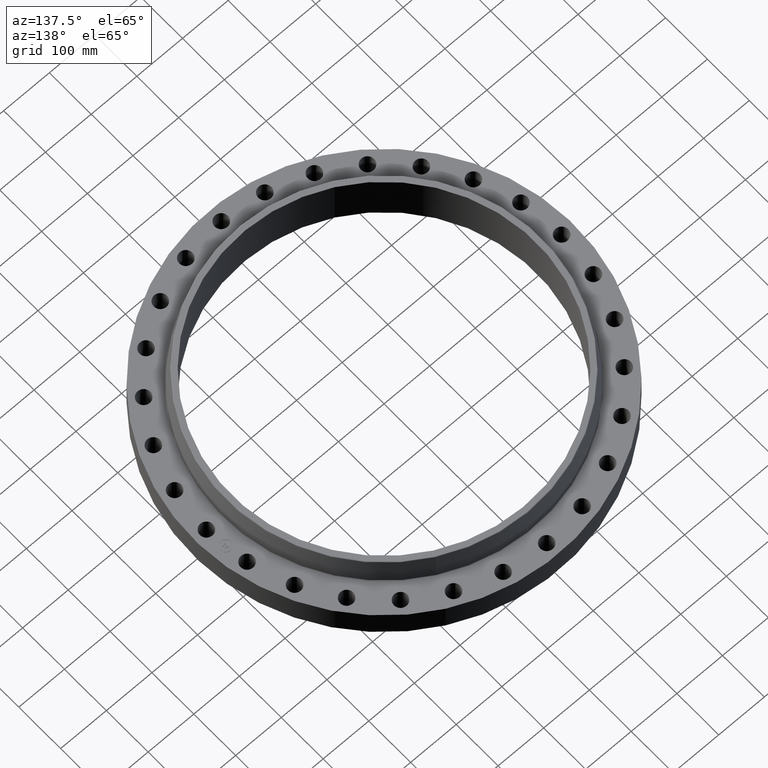
[diagram: clean part render]
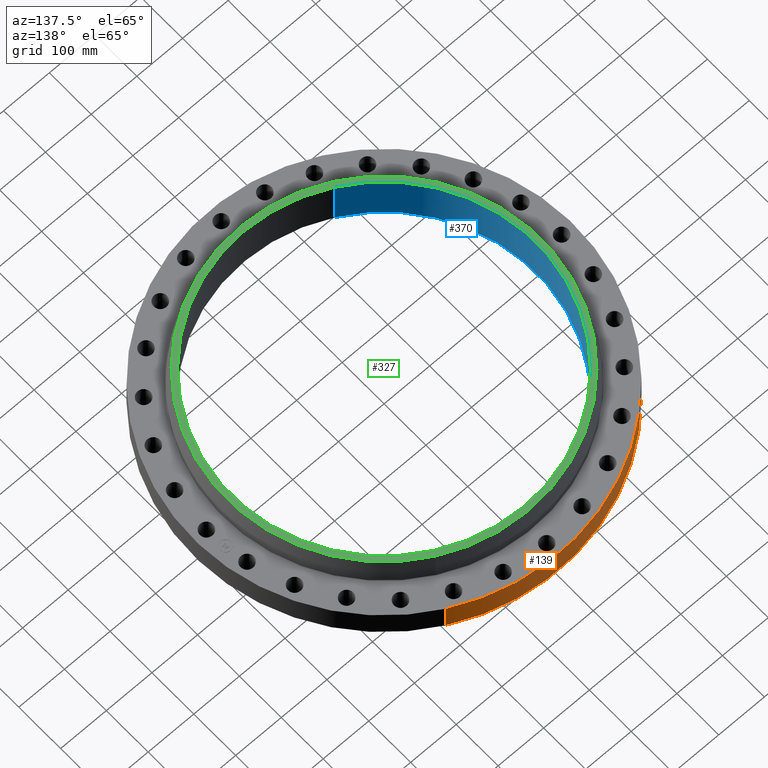
[diagram: same view with three faces highlighted in distinct colors, each labeled with its STEP entity id]
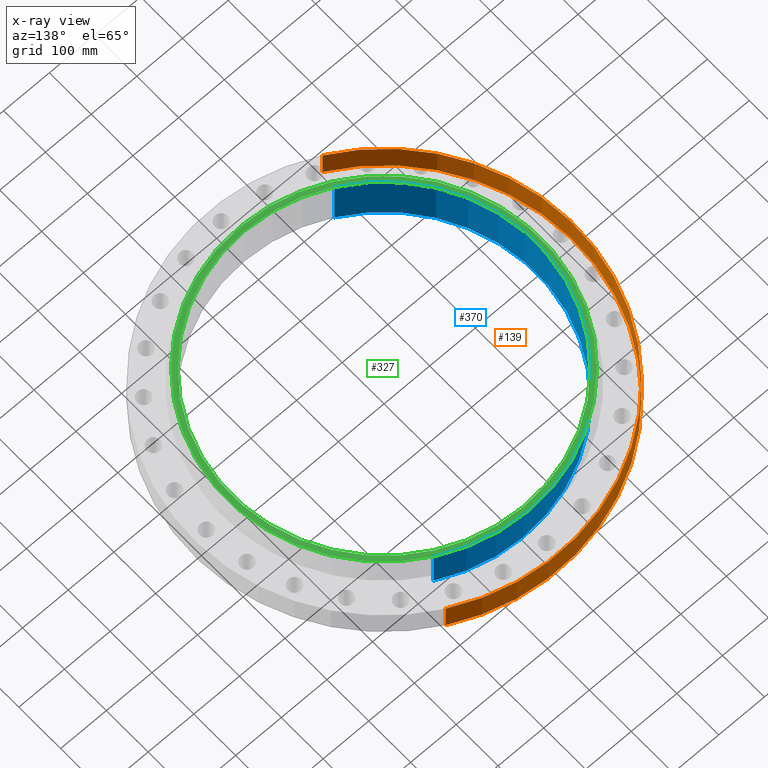
[diagram: x-ray of the same camera — body ghosted, the three highlighted faces saturated]
A machine part, auxiliary view with three faces highlighted in distinct colors.
The next image is the same camera in x-ray (body ghosted, the three faces saturated) — at least one of them is partly hidden behind the body in this view.
Their STEP definitions:

[orange] entity #139 — the highlighted cylindrical surface (partial cylindrical patch) has radius 415.925 mm, axis along (0, 0, -1).
#103=AXIS2_PLACEMENT_3D('Cylinder Axis2P3D',#100,#101,#102) ;
#107=AXIS2_PLACEMENT_3D('Circle Axis2P3D',#105,#106,$) ;
#123=AXIS2_PLACEMENT_3D('Circle Axis2P3D',#121,#122,$) ;
#100=CARTESIAN_POINT('Axis2P3D Location',(0.,0.,2.21875000001)) ;
#105=CARTESIAN_POINT('Axis2P3D Location',(0.,0.,1.95818864186E-015)) ;
#109=CARTESIAN_POINT('Vertex',(-7.85059319468,-14.370414451,1.95818864186E-015)) ;
#111=CARTESIAN_POINT('Vertex',(7.85059319468,14.370414451,1.95818864186E-015)) ;
#114=CARTESIAN_POINT('Line Origine',(-7.85059319468,-14.370414451,1.25000000001)) ;
#118=CARTESIAN_POINT('Vertex',(-7.85059319468,-14.370414451,2.50000000001)) ;
#121=CARTESIAN_POINT('Axis2P3D Location',(0.,0.,2.50000000001)) ;
#125=CARTESIAN_POINT('Vertex',(7.85059319468,14.370414451,2.50000000001)) ;
#128=CARTESIAN_POINT('Line Origine',(7.85059319468,14.370414451,1.25000000001)) ;
#101=DIRECTION('Axis2P3D Direction',(0.,0.,-0.0393700787402)) ;
#102=DIRECTION('Axis2P3D XDirection',(0.0188750212049,0.0345504945626,0.)) ;
#106=DIRECTION('Axis2P3D Direction',(0.,0.,-0.0393700787402)) ;
#115=DIRECTION('Vector Direction',(0.,0.,-0.0393700787402)) ;
#122=DIRECTION('Axis2P3D Direction',(0.,0.,-0.0393700787402)) ;
#129=DIRECTION('Vector Direction',(0.,0.,-0.0393700787402)) ;
#116=VECTOR('Line Direction',#115,0.0393700787402) ;
#130=VECTOR('Line Direction',#129,0.0393700787402) ;
#134=ORIENTED_EDGE('',*,*,#113,.F.) ;
#135=ORIENTED_EDGE('',*,*,#120,.T.) ;
#136=ORIENTED_EDGE('',*,*,#127,.T.) ;
#137=ORIENTED_EDGE('',*,*,#132,.F.) ;
#139=ADVANCED_FACE('PartBody',(#138),#104,.T.) ;
#108=CIRCLE('generated circle',#107,16.3750000001) ;
#124=CIRCLE('generated circle',#123,16.3750000001) ;
#104=CYLINDRICAL_SURFACE('generated cylinder',#103,16.3750000001) ;
#113=EDGE_CURVE('',#110,#112,#108,.T.) ;
#120=EDGE_CURVE('',#110,#119,#117,.F.) ;
#127=EDGE_CURVE('',#119,#126,#124,.T.) ;
#132=EDGE_CURVE('',#112,#126,#131,.F.) ;
#133=EDGE_LOOP('',(#134,#135,#136,#137)) ;
#138=FACE_OUTER_BOUND('',#133,.T.) ;
#117=LINE('Line',#114,#116) ;
#131=LINE('Line',#128,#130) ;
#110=VERTEX_POINT('',#109) ;
#112=VERTEX_POINT('',#111) ;
#119=VERTEX_POINT('',#118) ;
#126=VERTEX_POINT('',#125) ;

[blue] entity #370 — the highlighted cylindrical surface (partial cylindrical patch) has radius 333.375 mm, axis along (0, 0, -1).
#311=AXIS2_PLACEMENT_3D('Circle Axis2P3D',#309,#310,$) ;
#331=AXIS2_PLACEMENT_3D('Cylinder Axis2P3D',#328,#329,#330) ;
#361=AXIS2_PLACEMENT_3D('Circle Axis2P3D',#359,#360,$) ;
#309=CARTESIAN_POINT('Axis2P3D Location',(0.,0.,4.50000000002)) ;
#313=CARTESIAN_POINT('Vertex',(-6.29246019421,-11.5182711249,4.50000000002)) ;
#315=CARTESIAN_POINT('Vertex',(6.29246019421,11.5182711249,4.50000000002)) ;
#328=CARTESIAN_POINT('Axis2P3D Location',(0.,0.,2.21875000001)) ;
#333=CARTESIAN_POINT('Line Origine',(6.29246019421,11.5182711249,2.21875000001)) ;
#337=CARTESIAN_POINT('Vertex',(6.29246019421,11.5182711249,-0.0625000000003)) ;
#344=CARTESIAN_POINT('Vertex',(-6.29246019421,-11.5182711249,-0.0625000000003)) ;
#347=CARTESIAN_POINT('Line Origine',(-6.29246019421,-11.5182711249,2.21875000001)) ;
#359=CARTESIAN_POINT('Axis2P3D Location',(0.,0.,-0.0625000000003)) ;
#310=DIRECTION('Axis2P3D Direction',(0.,0.,-0.0393700787402)) ;
#329=DIRECTION('Axis2P3D Direction',(0.,0.,-0.0393700787402)) ;
#330=DIRECTION('Axis2P3D XDirection',(-0.0188750212049,-0.0345504945626,0.)) ;
#334=DIRECTION('Vector Direction',(0.,0.,-0.0393700787402)) ;
#348=DIRECTION('Vector Direction',(0.,0.,-0.0393700787402)) ;
#360=DIRECTION('Axis2P3D Direction',(0.,0.,-0.0393700787402)) ;
#335=VECTOR('Line Direction',#334,0.0393700787402) ;
#349=VECTOR('Line Direction',#348,0.0393700787402) ;
#365=ORIENTED_EDGE('',*,*,#317,.F.) ;
#366=ORIENTED_EDGE('',*,*,#351,.T.) ;
#367=ORIENTED_EDGE('',*,*,#363,.T.) ;
#368=ORIENTED_EDGE('',*,*,#339,.F.) ;
#370=ADVANCED_FACE('PartBody',(#369),#332,.F.) ;
#312=CIRCLE('generated circle',#311,13.1250000001) ;
#362=CIRCLE('generated circle',#361,13.1250000001) ;
#332=CYLINDRICAL_SURFACE('generated cylinder',#331,13.1250000001) ;
#317=EDGE_CURVE('',#314,#316,#312,.T.) ;
#339=EDGE_CURVE('',#316,#338,#336,.T.) ;
#351=EDGE_CURVE('',#314,#345,#350,.T.) ;
#363=EDGE_CURVE('',#345,#338,#362,.T.) ;
#364=EDGE_LOOP('',(#365,#366,#367,#368)) ;
#369=FACE_OUTER_BOUND('',#364,.T.) ;
#336=LINE('Line',#333,#335) ;
#350=LINE('Line',#347,#349) ;
#314=VERTEX_POINT('',#313) ;
#316=VERTEX_POINT('',#315) ;
#338=VERTEX_POINT('',#337) ;
#345=VERTEX_POINT('',#344) ;

[green] entity #327 — the highlighted planar face has unit normal (0, 0, -1).
#271=AXIS2_PLACEMENT_3D('Circle Axis2P3D',#269,#270,$) ;
#290=AXIS2_PLACEMENT_3D('Circle Axis2P3D',#288,#289,$) ;
#303=AXIS2_PLACEMENT_3D('Plane Axis2P3D',#300,#301,#302) ;
#311=AXIS2_PLACEMENT_3D('Circle Axis2P3D',#309,#310,$) ;
#320=AXIS2_PLACEMENT_3D('Circle Axis2P3D',#318,#319,$) ;
#266=CARTESIAN_POINT('Vertex',(6.48998354522,11.8798351936,4.50000000002)) ;
#269=CARTESIAN_POINT('Axis2P3D Location',(0.,0.,4.50000000002)) ;
#273=CARTESIAN_POINT('Vertex',(-6.48998354522,-11.8798351936,4.50000000002)) ;
#288=CARTESIAN_POINT('Axis2P3D Location',(0.,0.,4.50000000002)) ;
#300=CARTESIAN_POINT('Axis2P3D Location',(0.,13.5370000608,4.50000000002)) ;
#309=CARTESIAN_POINT('Axis2P3D Location',(0.,0.,4.50000000002)) ;
#313=CARTESIAN_POINT('Vertex',(-6.29246019421,-11.5182711249,4.50000000002)) ;
#315=CARTESIAN_POINT('Vertex',(6.29246019421,11.5182711249,4.50000000002)) ;
#318=CARTESIAN_POINT('Axis2P3D Location',(0.,0.,4.50000000002)) ;
#270=DIRECTION('Axis2P3D Direction',(0.,0.,-0.0393700787402)) ;
#289=DIRECTION('Axis2P3D Direction',(0.,0.,-0.0393700787402)) ;
#301=DIRECTION('Axis2P3D Direction',(0.,0.,-0.0393700787402)) ;
#302=DIRECTION('Axis2P3D XDirection',(0.0393700787402,0.,0.)) ;
#310=DIRECTION('Axis2P3D Direction',(0.,0.,-0.0393700787402)) ;
#319=DIRECTION('Axis2P3D Direction',(0.,0.,-0.0393700787402)) ;
#306=ORIENTED_EDGE('',*,*,#275,.F.) ;
#307=ORIENTED_EDGE('',*,*,#292,.F.) ;
#324=ORIENTED_EDGE('',*,*,#317,.T.) ;
#325=ORIENTED_EDGE('',*,*,#322,.T.) ;
#326=FACE_BOUND('',#323,.T.) ;
#327=ADVANCED_FACE('PartBody',(#308,#326),#304,.F.) ;
#272=CIRCLE('generated circle',#271,13.5370000608) ;
#291=CIRCLE('generated circle',#290,13.5370000608) ;
#312=CIRCLE('generated circle',#311,13.1250000001) ;
#321=CIRCLE('generated circle',#320,13.1250000001) ;
#275=EDGE_CURVE('',#267,#274,#272,.T.) ;
#292=EDGE_CURVE('',#274,#267,#291,.T.) ;
#317=EDGE_CURVE('',#314,#316,#312,.T.) ;
#322=EDGE_CURVE('',#316,#314,#321,.T.) ;
#305=EDGE_LOOP('',(#306,#307)) ;
#323=EDGE_LOOP('',(#324,#325)) ;
#308=FACE_OUTER_BOUND('',#305,.T.) ;
#304=PLANE('',#303) ;
#267=VERTEX_POINT('',#266) ;
#274=VERTEX_POINT('',#273) ;
#314=VERTEX_POINT('',#313) ;
#316=VERTEX_POINT('',#315) ;